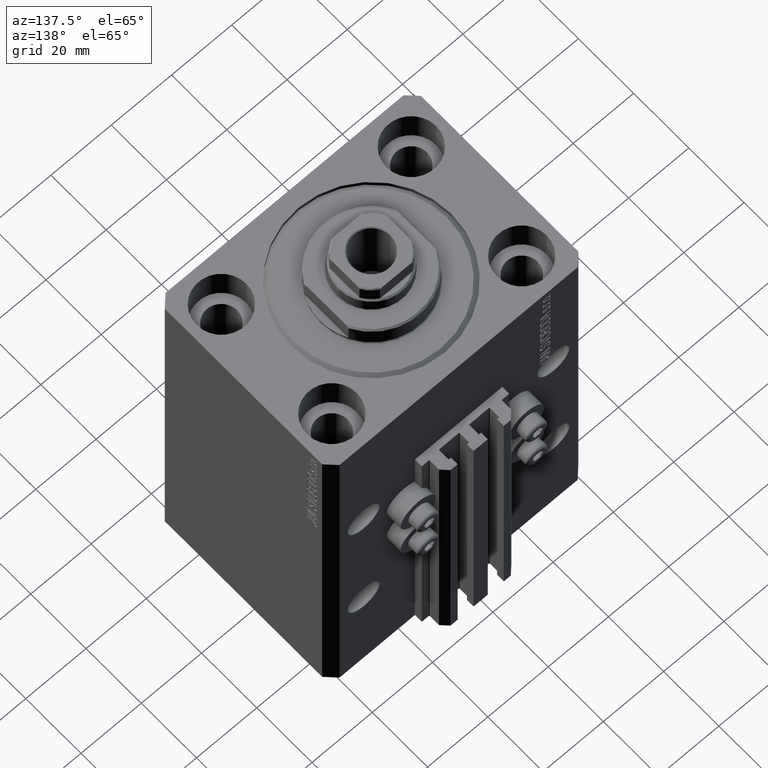
[diagram: clean part render]
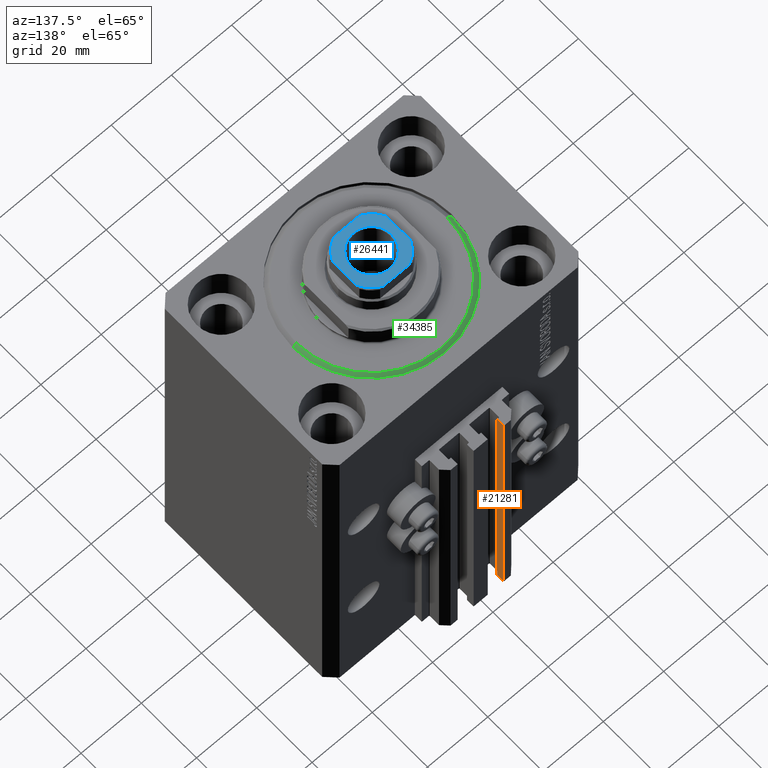
[diagram: same view with three faces highlighted in distinct colors, each labeled with its STEP entity id]
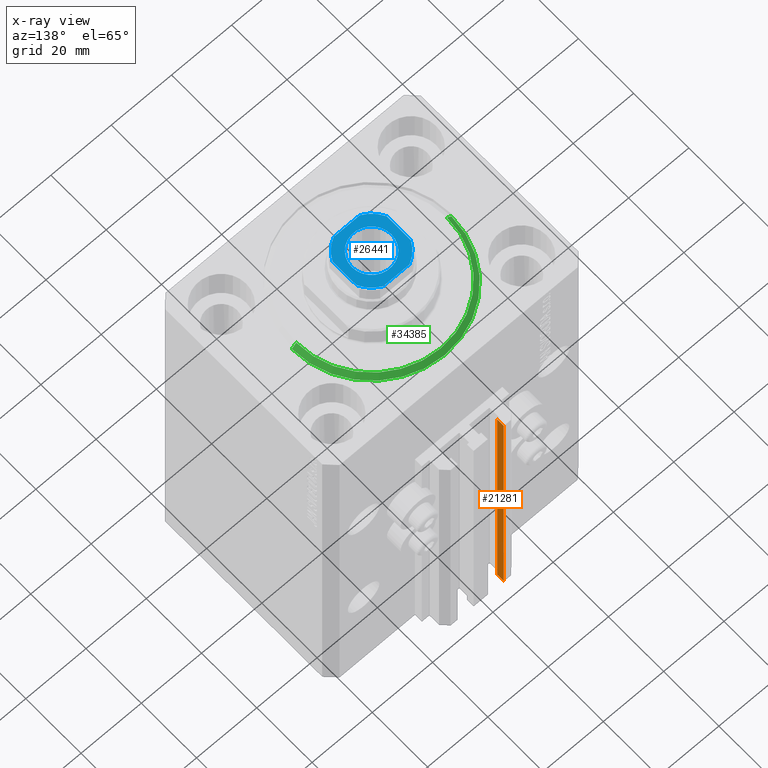
[diagram: x-ray of the same camera — body ghosted, the three highlighted faces saturated]
A machine part, auxiliary view with three faces highlighted in distinct colors.
The next image is the same camera in x-ray (body ghosted, the three faces saturated) — at least one of them is partly hidden behind the body in this view.
Their STEP definitions:

[orange] entity #21281 — the highlighted planar face has unit normal (1, 0, 0).
#2603 = LINE ( 'NONE', #32968, #24827 ) ;
#3335 = EDGE_CURVE ( 'NONE', #37922, #13567, #2603, .T. ) ;
#4180 = CARTESIAN_POINT ( 'NONE',  ( -7.650000000000002132, 37.09999999999999432, -33.00000000000000000 ) ) ;
#5215 = EDGE_CURVE ( 'NONE', #31714, #13210, #40885, .T. ) ;
#5513 = CARTESIAN_POINT ( 'NONE',  ( -7.650000000000002132, 37.09999999999999432, -123.0000000000000000 ) ) ;
#7192 = LINE ( 'NONE', #48032, #41460 ) ;
#7431 = AXIS2_PLACEMENT_3D ( 'NONE', #20358, #9665, #28120 ) ;
#7582 = ORIENTED_EDGE ( 'NONE', *, *, #5215, .F. ) ;
#9177 = DIRECTION ( 'NONE',  ( 0.000000000000000000, 0.000000000000000000, 1.000000000000000000 ) ) ;
#9363 = ORIENTED_EDGE ( 'NONE', *, *, #32207, .F. ) ;
#9665 = DIRECTION ( 'NONE',  ( 1.000000000000000000, 0.000000000000000000, 0.000000000000000000 ) ) ;
#10380 = FACE_OUTER_BOUND ( 'NONE', #27304, .T. ) ;
#11993 = DIRECTION ( 'NONE',  ( 0.000000000000000000, 1.000000000000000000, 0.000000000000000000 ) ) ;
#13210 = VERTEX_POINT ( 'NONE', #31984 ) ;
#13267 = ORIENTED_EDGE ( 'NONE', *, *, #3335, .T. ) ;
#13314 = PLANE ( 'NONE',  #7431 ) ;
#13567 = VERTEX_POINT ( 'NONE', #13695 ) ;
#13695 = CARTESIAN_POINT ( 'NONE',  ( -7.650000000000002132, 39.49999999999999289, -123.0000000000000000 ) ) ;
#18202 = EDGE_CURVE ( 'NONE', #13567, #13210, #7192, .T. ) ;
#20358 = CARTESIAN_POINT ( 'NONE',  ( -7.650000000000002132, 37.09999999999999432, -123.0000000000000000 ) ) ;
#21281 = ADVANCED_FACE ( 'NONE', ( #10380 ), #13314, .T. ) ;
#23085 = CARTESIAN_POINT ( 'NONE',  ( -7.650000000000002132, 37.09999999999999432, -33.00000000000000000 ) ) ;
#23865 = VECTOR ( 'NONE', #9177, 1000.000000000000000 ) ;
#24827 = VECTOR ( 'NONE', #47825, 1000.000000000000000 ) ;
#26623 = DIRECTION ( 'NONE',  ( 0.000000000000000000, 0.000000000000000000, 1.000000000000000000 ) ) ;
#27304 = EDGE_LOOP ( 'NONE', ( #7582, #9363, #13267, #36732 ) ) ;
#28120 = DIRECTION ( 'NONE',  ( 0.000000000000000000, 0.000000000000000000, -1.000000000000000000 ) ) ;
#31714 = VERTEX_POINT ( 'NONE', #23085 ) ;
#31984 = CARTESIAN_POINT ( 'NONE',  ( -7.650000000000002132, 39.49999999999999289, -33.00000000000000000 ) ) ;
#32207 = EDGE_CURVE ( 'NONE', #37922, #31714, #46603, .T. ) ;
#32968 = CARTESIAN_POINT ( 'NONE',  ( -7.650000000000002132, 37.09999999999999432, -123.0000000000000000 ) ) ;
#36732 = ORIENTED_EDGE ( 'NONE', *, *, #18202, .T. ) ;
#37922 = VERTEX_POINT ( 'NONE', #43394 ) ;
#38835 = VECTOR ( 'NONE', #11993, 1000.000000000000000 ) ;
#40885 = LINE ( 'NONE', #4180, #38835 ) ;
#41460 = VECTOR ( 'NONE', #26623, 1000.000000000000000 ) ;
#43394 = CARTESIAN_POINT ( 'NONE',  ( -7.650000000000002132, 37.09999999999999432, -123.0000000000000000 ) ) ;
#46603 = LINE ( 'NONE', #5513, #23865 ) ;
#47825 = DIRECTION ( 'NONE',  ( 0.000000000000000000, 1.000000000000000000, 0.000000000000000000 ) ) ;
#48032 = CARTESIAN_POINT ( 'NONE',  ( -7.650000000000002132, 39.49999999999999289, -123.0000000000000000 ) ) ;

[blue] entity #26441 — the highlighted planar face has unit normal (0, 0, 1).
#48 = ORIENTED_EDGE ( 'NONE', *, *, #17408, .T. ) ;
#534 = EDGE_CURVE ( 'NONE', #14128, #8414, #24038, .T. ) ;
#687 = VECTOR ( 'NONE', #43249, 1000.000000000000000 ) ;
#693 = CARTESIAN_POINT ( 'NONE',  ( 4.358898943540671311, -9.000000000000001776, 128.5999999999999943 ) ) ;
#824 = CARTESIAN_POINT ( 'NONE',  ( 0.000000000000000000, 0.000000000000000000, 128.5999999999999943 ) ) ;
#2064 = EDGE_CURVE ( 'NONE', #46003, #36363, #25022, .T. ) ;
#2363 = CARTESIAN_POINT ( 'NONE',  ( 6.549999999999971401, 0.000000000000000000, 128.5999999999999943 ) ) ;
#2566 = CIRCLE ( 'NONE', #8799, 10.00000000000000000 ) ;
#3249 = EDGE_LOOP ( 'NONE', ( #15716, #20131, #46022, #29723, #12007, #48, #19042, #20290 ) ) ;
#4423 = EDGE_CURVE ( 'NONE', #34926, #46003, #24867, .T. ) ;
#4757 = VECTOR ( 'NONE', #5379, 1000.000000000000000 ) ;
#5379 = DIRECTION ( 'NONE',  ( -1.000000000000000000, -0.000000000000000000, -0.000000000000000000 ) ) ;
#6034 = DIRECTION ( 'NONE',  ( 1.000000000000000000, 0.000000000000000000, 0.000000000000000000 ) ) ;
#7355 = VECTOR ( 'NONE', #31981, 1000.000000000000000 ) ;
#7964 = VERTEX_POINT ( 'NONE', #44021 ) ;
#8414 = VERTEX_POINT ( 'NONE', #16917 ) ;
#8702 = CARTESIAN_POINT ( 'NONE',  ( -9.000000000000000000, 4.358898943540674864, 128.5999999999999943 ) ) ;
#8799 = AXIS2_PLACEMENT_3D ( 'NONE', #12631, #12872, #6034 ) ;
#9106 = DIRECTION ( 'NONE',  ( 1.000000000000000000, 0.000000000000000000, 0.000000000000000000 ) ) ;
#10081 = CARTESIAN_POINT ( 'NONE',  ( -4.358898943540671311, -9.000000000000001776, 128.5999999999999943 ) ) ;
#10488 = EDGE_CURVE ( 'NONE', #18987, #7964, #32787, .T. ) ;
#11109 = DIRECTION ( 'NONE',  ( 0.000000000000000000, -0.000000000000000000, -1.000000000000000000 ) ) ;
#11960 = EDGE_CURVE ( 'NONE', #36363, #21491, #2566, .T. ) ;
#11963 = CIRCLE ( 'NONE', #39098, 6.549999999999971401 ) ;
#12007 = ORIENTED_EDGE ( 'NONE', *, *, #19047, .T. ) ;
#12631 = CARTESIAN_POINT ( 'NONE',  ( 0.000000000000000000, 0.000000000000000000, 128.5999999999999943 ) ) ;
#12872 = DIRECTION ( 'NONE',  ( -0.000000000000000000, 0.000000000000000000, 1.000000000000000000 ) ) ;
#13098 = CARTESIAN_POINT ( 'NONE',  ( 0.000000000000000000, 0.000000000000000000, 128.5999999999999943 ) ) ;
#13292 = CARTESIAN_POINT ( 'NONE',  ( 0.000000000000000000, 0.000000000000000000, 128.5999999999999943 ) ) ;
#14128 = VERTEX_POINT ( 'NONE', #2363 ) ;
#15716 = ORIENTED_EDGE ( 'NONE', *, *, #2064, .T. ) ;
#16702 = AXIS2_PLACEMENT_3D ( 'NONE', #34564, #42836, #42350 ) ;
#16917 = CARTESIAN_POINT ( 'NONE',  ( -6.549999999999971401, 8.021436534415127749E-16, 128.5999999999999943 ) ) ;
#17076 = AXIS2_PLACEMENT_3D ( 'NONE', #47817, #11109, #25916 ) ;
#17085 = FACE_OUTER_BOUND ( 'NONE', #3249, .T. ) ;
#17189 = EDGE_CURVE ( 'NONE', #8414, #14128, #11963, .T. ) ;
#17262 = CARTESIAN_POINT ( 'NONE',  ( -9.000000000000000000, 8.999999999999998224, 128.5999999999999943 ) ) ;
#17408 = EDGE_CURVE ( 'NONE', #45464, #38944, #43033, .T. ) ;
#17806 = EDGE_LOOP ( 'NONE', ( #21243, #36621 ) ) ;
#18987 = VERTEX_POINT ( 'NONE', #693 ) ;
#19042 = ORIENTED_EDGE ( 'NONE', *, *, #44482, .T. ) ;
#19047 = EDGE_CURVE ( 'NONE', #7964, #45464, #24941, .T. ) ;
#20131 = ORIENTED_EDGE ( 'NONE', *, *, #11960, .T. ) ;
#20142 = DIRECTION ( 'NONE',  ( -0.000000000000000000, 0.000000000000000000, 1.000000000000000000 ) ) ;
#20290 = ORIENTED_EDGE ( 'NONE', *, *, #4423, .T. ) ;
#20688 = LINE ( 'NONE', #31382, #4757 ) ;
#21243 = ORIENTED_EDGE ( 'NONE', *, *, #534, .T. ) ;
#21491 = VERTEX_POINT ( 'NONE', #10081 ) ;
#22573 = LINE ( 'NONE', #36671, #44114 ) ;
#23299 = AXIS2_PLACEMENT_3D ( 'NONE', #13292, #39267, #39513 ) ;
#24038 = CIRCLE ( 'NONE', #17076, 6.549999999999971401 ) ;
#24867 = CIRCLE ( 'NONE', #23299, 10.00000000000000000 ) ;
#24941 = LINE ( 'NONE', #39759, #7355 ) ;
#25022 = LINE ( 'NONE', #17262, #687 ) ;
#25916 = DIRECTION ( 'NONE',  ( 1.000000000000000000, 0.000000000000000000, 0.000000000000000000 ) ) ;
#26441 = ADVANCED_FACE ( 'NONE', ( #41862, #17085 ), #46489, .T. ) ;
#28069 = CARTESIAN_POINT ( 'NONE',  ( -4.358898943540678417, 8.999999999999998224, 128.5999999999999943 ) ) ;
#28759 = CARTESIAN_POINT ( 'NONE',  ( 0.000000000000000000, 0.000000000000000000, 128.5999999999999943 ) ) ;
#29723 = ORIENTED_EDGE ( 'NONE', *, *, #10488, .T. ) ;
#31382 = CARTESIAN_POINT ( 'NONE',  ( -9.000000000000000000, 8.999999999999998224, 128.5999999999999943 ) ) ;
#31981 = DIRECTION ( 'NONE',  ( -9.637352644315595243E-17, 1.000000000000000000, -0.000000000000000000 ) ) ;
#32610 = CARTESIAN_POINT ( 'NONE',  ( -9.000000000000000000, -4.358898943540675752, 128.5999999999999943 ) ) ;
#32787 = CIRCLE ( 'NONE', #46804, 10.00000000000000000 ) ;
#33890 = DIRECTION ( 'NONE',  ( 0.000000000000000000, -0.000000000000000000, -1.000000000000000000 ) ) ;
#34564 = CARTESIAN_POINT ( 'NONE',  ( 0.000000000000000000, 0.000000000000000000, 128.5999999999999943 ) ) ;
#34926 = VERTEX_POINT ( 'NONE', #28069 ) ;
#35196 = DIRECTION ( 'NONE',  ( 1.000000000000000000, 0.000000000000000000, 0.000000000000000000 ) ) ;
#36363 = VERTEX_POINT ( 'NONE', #32610 ) ;
#36621 = ORIENTED_EDGE ( 'NONE', *, *, #17189, .T. ) ;
#36671 = CARTESIAN_POINT ( 'NONE',  ( -8.999999999999998224, -9.000000000000001776, 128.5999999999999943 ) ) ;
#36794 = EDGE_CURVE ( 'NONE', #21491, #18987, #22573, .T. ) ;
#38944 = VERTEX_POINT ( 'NONE', #45171 ) ;
#39098 = AXIS2_PLACEMENT_3D ( 'NONE', #824, #33890, #9106 ) ;
#39267 = DIRECTION ( 'NONE',  ( -0.000000000000000000, 0.000000000000000000, 1.000000000000000000 ) ) ;
#39513 = DIRECTION ( 'NONE',  ( 1.000000000000000000, 0.000000000000000000, 0.000000000000000000 ) ) ;
#39759 = CARTESIAN_POINT ( 'NONE',  ( 9.000000000000000000, 8.999999999999998224, 128.5999999999999943 ) ) ;
#39937 = AXIS2_PLACEMENT_3D ( 'NONE', #28759, #43591, #42878 ) ;
#41862 = FACE_BOUND ( 'NONE', #17806, .T. ) ;
#42350 = DIRECTION ( 'NONE',  ( 1.000000000000000000, 0.000000000000000000, 0.000000000000000000 ) ) ;
#42836 = DIRECTION ( 'NONE',  ( -0.000000000000000000, 0.000000000000000000, 1.000000000000000000 ) ) ;
#42878 = DIRECTION ( 'NONE',  ( 1.000000000000000000, 0.000000000000000000, 0.000000000000000000 ) ) ;
#43033 = CIRCLE ( 'NONE', #39937, 10.00000000000000000 ) ;
#43249 = DIRECTION ( 'NONE',  ( 9.637352644315595243E-17, -1.000000000000000000, 0.000000000000000000 ) ) ;
#43591 = DIRECTION ( 'NONE',  ( -0.000000000000000000, 0.000000000000000000, 1.000000000000000000 ) ) ;
#43972 = DIRECTION ( 'NONE',  ( 1.000000000000000000, 0.000000000000000000, 0.000000000000000000 ) ) ;
#44021 = CARTESIAN_POINT ( 'NONE',  ( 9.000000000000001776, -4.358898943540675752, 128.5999999999999943 ) ) ;
#44114 = VECTOR ( 'NONE', #43972, 1000.000000000000000 ) ;
#44482 = EDGE_CURVE ( 'NONE', #38944, #34926, #20688, .T. ) ;
#45171 = CARTESIAN_POINT ( 'NONE',  ( 4.358898943540677529, 8.999999999999998224, 128.5999999999999943 ) ) ;
#45464 = VERTEX_POINT ( 'NONE', #47200 ) ;
#46003 = VERTEX_POINT ( 'NONE', #8702 ) ;
#46022 = ORIENTED_EDGE ( 'NONE', *, *, #36794, .T. ) ;
#46489 = PLANE ( 'NONE',  #16702 ) ;
#46804 = AXIS2_PLACEMENT_3D ( 'NONE', #13098, #20142, #35196 ) ;
#47200 = CARTESIAN_POINT ( 'NONE',  ( 9.000000000000000000, 4.358898943540675752, 128.5999999999999943 ) ) ;
#47817 = CARTESIAN_POINT ( 'NONE',  ( 0.000000000000000000, 0.000000000000000000, 128.5999999999999943 ) ) ;

[green] entity #34385 — the highlighted conical surface has half-angle 45 deg.
#52 = AXIS2_PLACEMENT_3D ( 'NONE', #4130, #34272, #30620 ) ;
#4074 = DIRECTION ( 'NONE',  ( -0.000000000000000000, -0.000000000000000000, 1.000000000000000000 ) ) ;
#4130 = CARTESIAN_POINT ( 'NONE',  ( 0.000000000000000000, 0.000000000000000000, 0.000000000000000000 ) ) ;
#5069 = DIRECTION ( 'NONE',  ( -0.7071067811865483499, 8.659560562354942719E-17, 0.7071067811865466846 ) ) ;
#5088 = ORIENTED_EDGE ( 'NONE', *, *, #6443, .F. ) ;
#5810 = DIRECTION ( 'NONE',  ( -0.000000000000000000, -0.000000000000000000, 1.000000000000000000 ) ) ;
#5933 = VERTEX_POINT ( 'NONE', #39957 ) ;
#6443 = EDGE_CURVE ( 'NONE', #42419, #5933, #40418, .T. ) ;
#6589 = EDGE_CURVE ( 'NONE', #5933, #40587, #42049, .T. ) ;
#6757 = AXIS2_PLACEMENT_3D ( 'NONE', #15288, #4074, #22558 ) ;
#7843 = ORIENTED_EDGE ( 'NONE', *, *, #30046, .T. ) ;
#8468 = FACE_OUTER_BOUND ( 'NONE', #23412, .T. ) ;
#11742 = CARTESIAN_POINT ( 'NONE',  ( -24.99999999999998224, 3.153465507804433615E-15, 0.000000000000000000 ) ) ;
#12662 = CARTESIAN_POINT ( 'NONE',  ( 26.50000000000000355, 0.000000000000000000, 1.500000000000018652 ) ) ;
#12877 = CARTESIAN_POINT ( 'NONE',  ( -26.50000000000000355, 3.245314017740486554E-15, 1.500000000000018652 ) ) ;
#15272 = VECTOR ( 'NONE', #5069, 1000.000000000000000 ) ;
#15288 = CARTESIAN_POINT ( 'NONE',  ( 0.000000000000000000, 0.000000000000000000, 1.500000000000018652 ) ) ;
#16928 = ORIENTED_EDGE ( 'NONE', *, *, #6589, .F. ) ;
#20996 = AXIS2_PLACEMENT_3D ( 'NONE', #27929, #5810, #46661 ) ;
#21872 = CIRCLE ( 'NONE', #20996, 26.50000000000000355 ) ;
#22558 = DIRECTION ( 'NONE',  ( 1.000000000000000000, 0.000000000000000000, 0.000000000000000000 ) ) ;
#23412 = EDGE_LOOP ( 'NONE', ( #5088, #7843, #46091, #16928 ) ) ;
#27466 = DIRECTION ( 'NONE',  ( 0.7071067811865483499, 0.000000000000000000, 0.7071067811865466846 ) ) ;
#27929 = CARTESIAN_POINT ( 'NONE',  ( 0.000000000000000000, 0.000000000000000000, 1.500000000000018652 ) ) ;
#29028 = VERTEX_POINT ( 'NONE', #44866 ) ;
#30046 = EDGE_CURVE ( 'NONE', #42419, #29028, #46400, .T. ) ;
#30620 = DIRECTION ( 'NONE',  ( 1.000000000000000000, 0.000000000000000000, 0.000000000000000000 ) ) ;
#34272 = DIRECTION ( 'NONE',  ( -0.000000000000000000, -0.000000000000000000, -1.000000000000000000 ) ) ;
#34385 = ADVANCED_FACE ( 'NONE', ( #8468 ), #39358, .T. ) ;
#35779 = VECTOR ( 'NONE', #27466, 1000.000000000000000 ) ;
#38410 = CARTESIAN_POINT ( 'NONE',  ( 26.50000000000000355, 3.245314017740486554E-15, 1.500000000000018652 ) ) ;
#39358 = CONICAL_SURFACE ( 'NONE', #6757, 26.50000000000000355, 0.7853981633974495002 ) ;
#39957 = CARTESIAN_POINT ( 'NONE',  ( 24.99999999999998224, 0.000000000000000000, 0.000000000000000000 ) ) ;
#40418 = CIRCLE ( 'NONE', #52, 24.99999999999998224 ) ;
#40587 = VERTEX_POINT ( 'NONE', #38410 ) ;
#42049 = LINE ( 'NONE', #12662, #35779 ) ;
#42419 = VERTEX_POINT ( 'NONE', #11742 ) ;
#44866 = CARTESIAN_POINT ( 'NONE',  ( -26.50000000000000355, 0.000000000000000000, 1.500000000000018652 ) ) ;
#45704 = EDGE_CURVE ( 'NONE', #40587, #29028, #21872, .T. ) ;
#46091 = ORIENTED_EDGE ( 'NONE', *, *, #45704, .F. ) ;
#46400 = LINE ( 'NONE', #12877, #15272 ) ;
#46661 = DIRECTION ( 'NONE',  ( 1.000000000000000000, 0.000000000000000000, 0.000000000000000000 ) ) ;